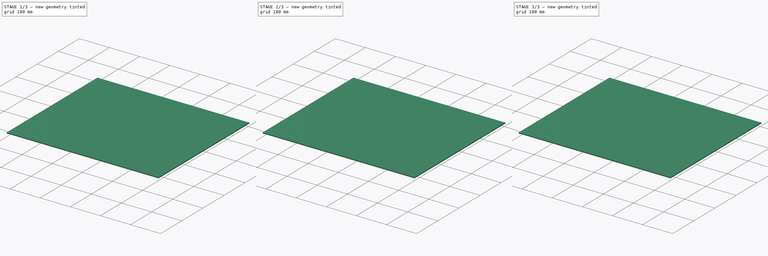
[diagram: build sequence overview — one tinted view per stage of 3, left to right]
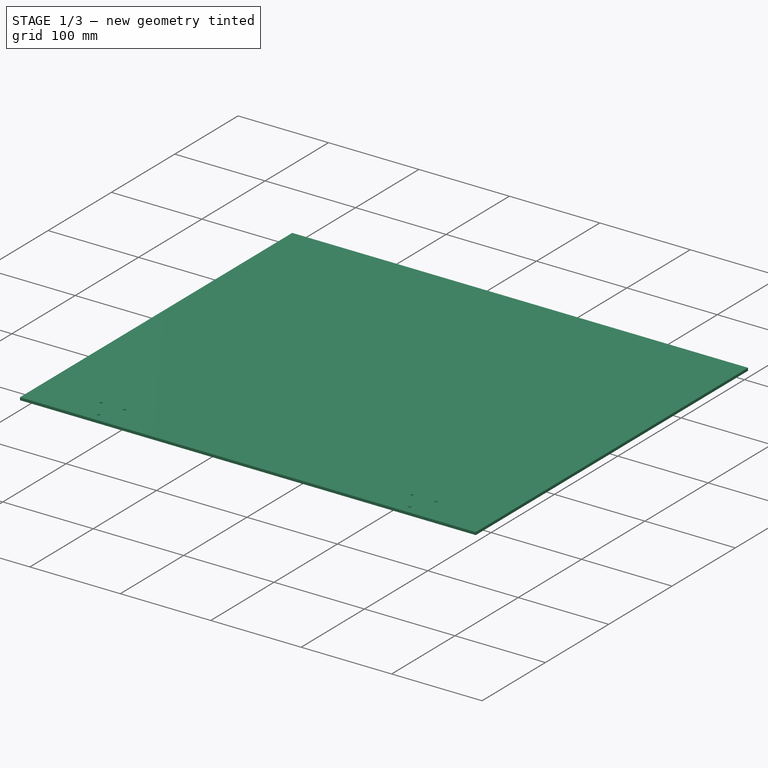
[diagram: stage 1 of 3 — iso view after this stage's code; geometry added in this stage tinted green]
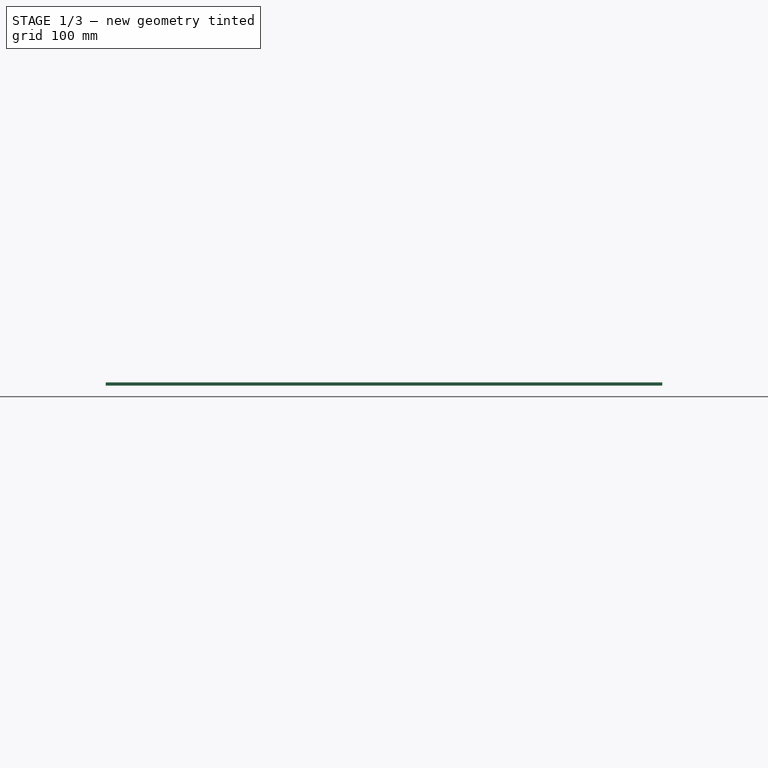
[diagram: stage 1 of 3 — front view after this stage's code; geometry added in this stage tinted green]
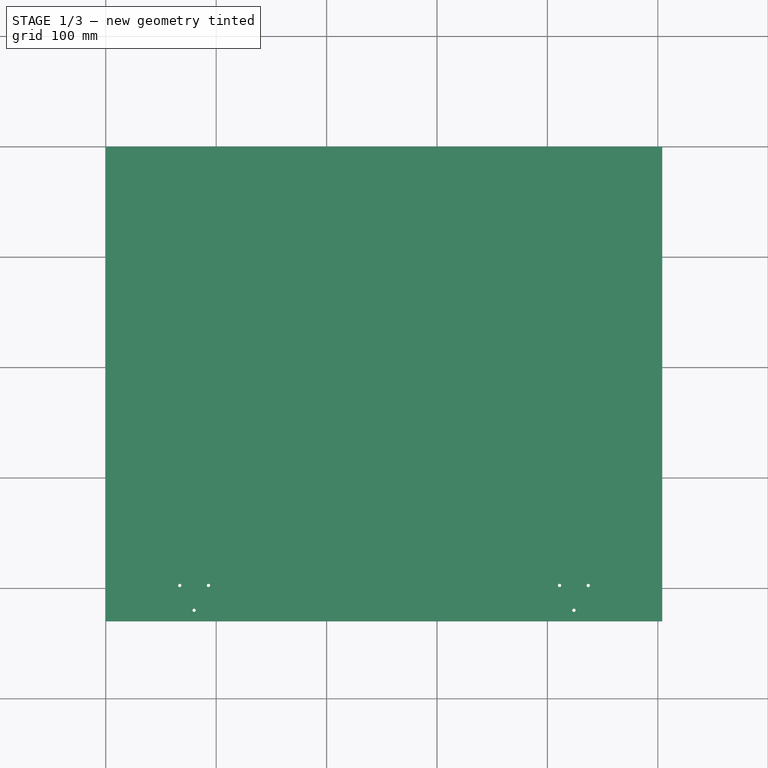
[diagram: stage 1 of 3 — top view after this stage's code; geometry added in this stage tinted green]
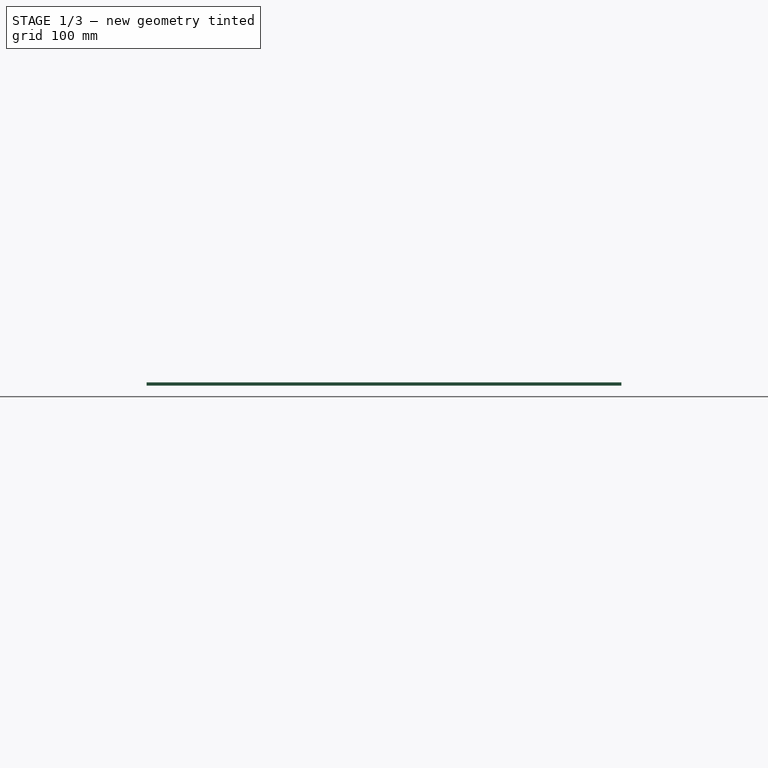
[diagram: stage 1 of 3 — right view after this stage's code; geometry added in this stage tinted green]
FCSTD DOCUMENT  (FreeCAD 0.19R24291 (Git))
Label: panel-drawing-250
License: Other
LicenseURL: GPL3
objects: Sketcher::SketchObject×5, PartDesign::Pad×5, PartDesign::Body×5, Part::Part2DObjectPython×5
note: 25 computed .brp shape members not serialized (recipe doc carries the construction recipe); baked Part::Feature solids carry a one-line shape summary decoded from their .brp

FEATURE [PartDesign::Body] Body002  label="top"
  Group = -> [Sketch002,Pad002]
  Origin = -> Origin002
  Tip = -> Pad002
FEATURE [Sketcher::SketchObject] Sketch003
  FullyConstrained = true
  MapMode = 5
  Support = -> [XY_Plane003]
  sketch-geometry (4):
    g0: LineSegment StartX=0 StartY=0 StartZ=0 EndX=504 EndY=0 EndZ=0
    g1: LineSegment StartX=504 StartY=0 StartZ=0 EndX=504 EndY=-374 EndZ=0
    g2: LineSegment StartX=504 StartY=-374 StartZ=0 EndX=0 EndY=-374 EndZ=0
    g3: LineSegment StartX=0 StartY=-374 StartZ=0 EndX=0 EndY=0 EndZ=0
  constraints (11):
    c: Coincident(g0,g1)
    c: Coincident(g1,g2)
    c: Coincident(g2,g3)
    c: Coincident(g3,g0)
    c: Horizontal(g0)
    c: Horizontal(g2)
    c: Vertical(g1)
    c: Vertical(g3)
    c: Coincident(g0,g-1)
    c: DistanceY(g1,g1) = 374
    c: DistanceX(g2,g2) = 504
FEATURE [Sketcher::SketchObject] Sketch004
  FullyConstrained = true
  MapMode = 5
  Support = -> [XY_Plane004]
  sketch-geometry (16):
    g0: LineSegment StartX=0 StartY=0 StartZ=0 EndX=504 EndY=0 EndZ=0
    g1: LineSegment StartX=504 StartY=0 StartZ=0 EndX=504 EndY=-430 EndZ=0
    g2: LineSegment StartX=504 StartY=-430 StartZ=0 EndX=0 EndY=-430 EndZ=0
    g3: LineSegment StartX=0 StartY=-430 StartZ=0 EndX=0 EndY=0 EndZ=0
    g4: Circle CenterX=80 CenterY=-10 CenterZ=0 NormalX=0 NormalY=0 NormalZ=1 AngleXU=0 Radius=1.5
    g5: Circle CenterX=109 CenterY=-10 CenterZ=0 NormalX=0 NormalY=0 NormalZ=1 AngleXU=0 Radius=1.5
    g6: Circle CenterX=347 CenterY=-10 CenterZ=0 NormalX=0 NormalY=0 NormalZ=1 AngleXU=0 Radius=1.5
    g7: Circle CenterX=374 CenterY=-10 CenterZ=0 NormalX=0 NormalY=0 NormalZ=1 AngleXU=0 Radius=1.5
    g8: Circle CenterX=395 CenterY=-10 CenterZ=0 NormalX=0 NormalY=0 NormalZ=1 AngleXU=0 Radius=1.5
    g9: Circle CenterX=424 CenterY=-10 CenterZ=0 NormalX=0 NormalY=0 NormalZ=1 AngleXU=0 Radius=1.5
    g10: Circle CenterX=67 CenterY=-397.5 CenterZ=0 NormalX=0 NormalY=0 NormalZ=1 AngleXU=0 Radius=1.5
    g11: Circle CenterX=80 CenterY=-420 CenterZ=0 NormalX=0 NormalY=0 NormalZ=1 AngleXU=0 Radius=1.5
    g12: Circle CenterX=93 CenterY=-397.5 CenterZ=0 NormalX=0 NormalY=0 NormalZ=1 AngleXU=0 Radius=1.5
    g13: Circle CenterX=437 CenterY=-397.5 CenterZ=0 NormalX=0 NormalY=0 NormalZ=1 AngleXU=0 Radius=1.5
    g14: Circle CenterX=411 CenterY=-397.5 CenterZ=0 NormalX=0 NormalY=0 NormalZ=1 AngleXU=0 Radius=1.5
    g15: Circle CenterX=424 CenterY=-420 CenterZ=0 NormalX=0 NormalY=0 NormalZ=1 AngleXU=0 Radius=1.5
  constraints (47):
    c: Coincident(g0,g1)
    c: Coincident(g1,g2)
    c: Coincident(g2,g3)
    c: Coincident(g3,g0)
    c: Horizontal(g0)
    c: Horizontal(g2)
    c: Vertical(g1)
    c: Vertical(g3)
    c: Coincident(g0,g-1)
    c: DistanceX(g2,g2) = 504
    c: DistanceY(g1,g1) = 430
    c: Radius(g4) = 1.5
    c: Radius(g5) = 1.5
    c: Radius(g6) = 1.5
    c: Radius(g7) = 1.5
    c: Radius(g8) = 1.5
    c: Radius(g9) = 1.5
    c: Horizontal(g9,g8)
    c: Horizontal(g8,g7)
    c: Horizontal(g7,g6)
    c: Horizontal(g6,g5)
    c: Horizontal(g5,g4)
    c: DistanceY(g4,g0) = 10
    c: DistanceX(g0,g4) = 80
    c: DistanceX(g4,g5) = 29
    c: DistanceX(g9,g0) = 80
    c: DistanceX(g8,g9) = 29
    c: DistanceX(g7,g0) = 130
    c: DistanceX(g6,g7) = 27
    c: Radius(g10) = 1.5
    c: Radius(g11) = 1.5
    c: Radius(g12) = 1.5
    c: Radius(g14) = 1.5
    c: Radius(g15) = 1.5
    c: Radius(g13) = 1.5
    c: DistanceX(g2,g10) = 67
    c: DistanceX(g10,g11) = 13
    c: DistanceX(g11,g12) = 13
    c: DistanceX(g13,g1) = 67
    c: DistanceX(g15,g13) = 13
    c: DistanceX(g14,g15) = 13
    c: DistanceY(g2,g11) = 10
    c: DistanceY(g11,g10) = 22.5
    c: DistanceY(g11,g12) = 22.5
    c: DistanceY(g1,g15) = 10
    c: DistanceY(g15,g14) = 22.5
    c: Horizontal(g13,g14)
FEATURE [PartDesign::Pad] Pad003
  Direction = (1,1,1)
  Length = 3
  Length2 = 100
  Profile = -> Sketch004
  Type = 0
FEATURE [PartDesign::Body] Body004  label="front"
  Group = -> [Sketch004,Pad003]
  Origin = -> Origin004
  Tip = -> Pad003
FEATURE [Part::Part2DObjectPython] Shape2DView  label="rear-top-2d"  # Draft 2D object (typed FeaturePython)
  Base = -> Body
  FuseArch = false
  HiddenLines = false
  InPlace = true
  Projection = (0,0,1)
  ProjectionMode = 0
  SegmentLength = 0.05
  Tessellation = false
  VisibleOnly = false
FEATURE [Part::Part2DObjectPython] Shape2DView001  label="rear-bottom-2d"  # Draft 2D object (typed FeaturePython)
  Base = -> Body001
  FuseArch = false
  HiddenLines = false
  InPlace = true
  Projection = (0,0,1)
  ProjectionMode = 0
  SegmentLength = 0.05
  Tessellation = false
  VisibleOnly = false
FEATURE [Part::Part2DObjectPython] Shape2DView002  label="top-2d"  # Draft 2D object (typed FeaturePython)
  Base = -> Body002
  FuseArch = false
  HiddenLines = false
  InPlace = true
  Projection = (0,0,1)
  ProjectionMode = 0
  SegmentLength = 0.05
  Tessellation = false
  VisibleOnly = false
FEATURE [PartDesign::Pad] Pad004
  Direction = (1,1,1)
  Length = 3
  Length2 = 100
  Profile = -> Sketch003
  Type = 0
FEATURE [PartDesign::Body] Body003  label="side"
  Group = -> [Sketch003,Pad004]
  Origin = -> Origin003
  Tip = -> Pad004
FEATURE [Part::Part2DObjectPython] Shape2DView003  label="side-2d"  # Draft 2D object (typed FeaturePython)
  Base = -> Body003
  FuseArch = false
  HiddenLines = false
  InPlace = true
  Projection = (0,0,1)
  ProjectionMode = 0
  SegmentLength = 0.05
  Tessellation = false
  VisibleOnly = false
FEATURE [Part::Part2DObjectPython] Shape2DView004  label="front-2d"  # Draft 2D object (typed FeaturePython)
  Base = -> Body004
  FuseArch = false
  HiddenLines = false
  InPlace = true
  Projection = (0,0,1)
  ProjectionMode = 0
  SegmentLength = 0.05
  Tessellation = false
  VisibleOnly = false
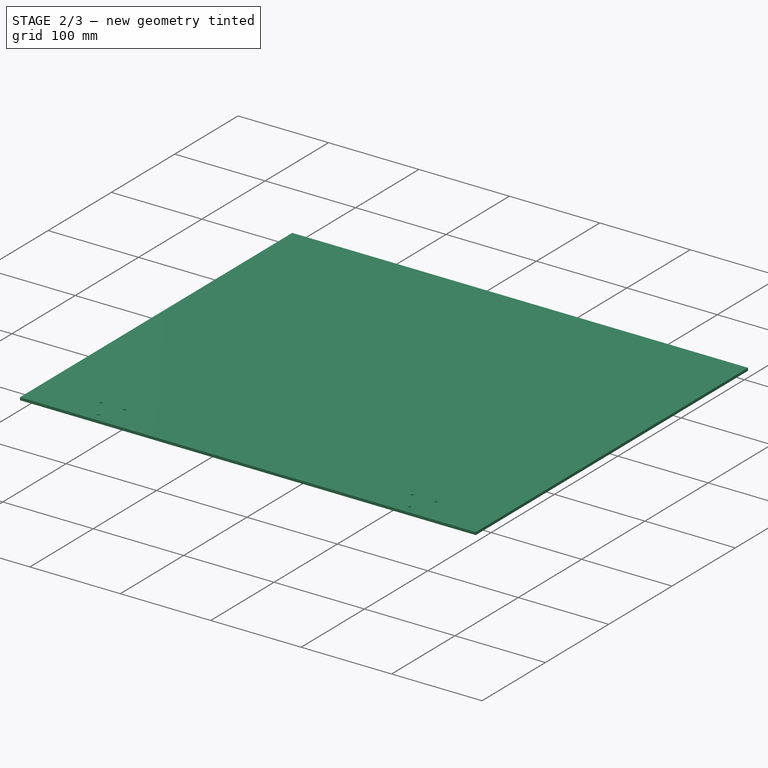
[diagram: stage 2 of 3 — iso view after this stage's code; geometry added in this stage tinted green]
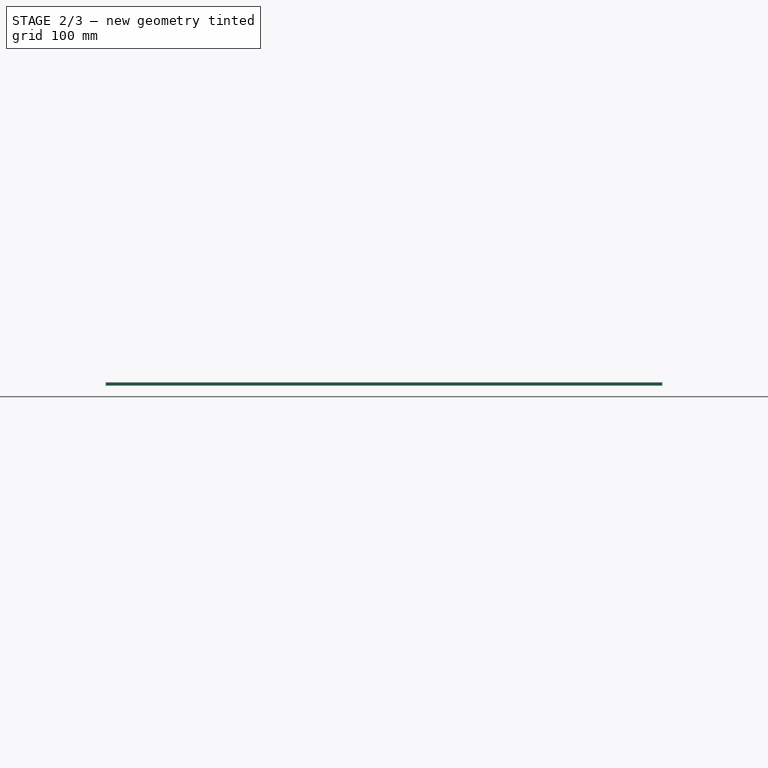
[diagram: stage 2 of 3 — front view after this stage's code; geometry added in this stage tinted green]
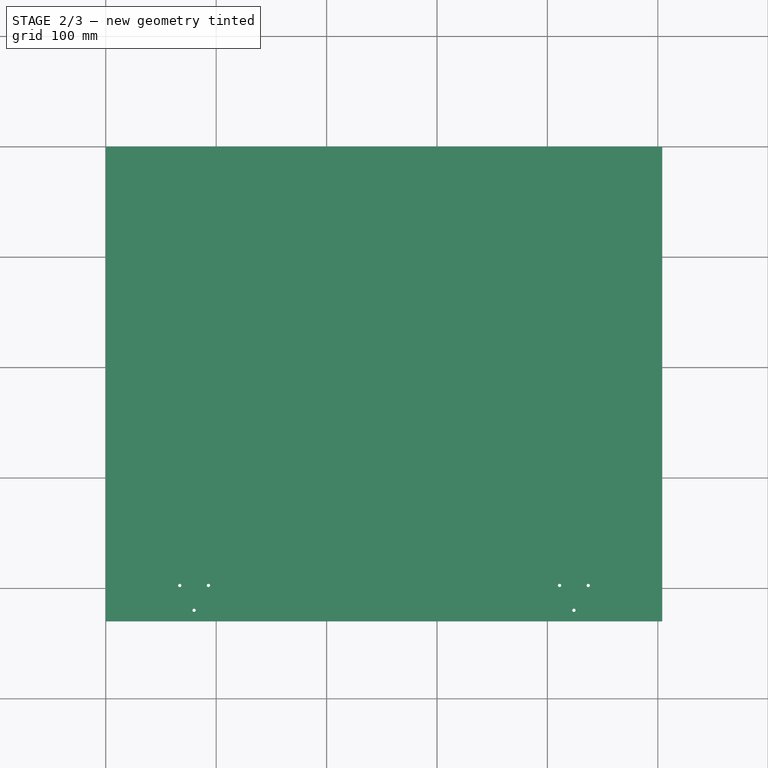
[diagram: stage 2 of 3 — top view after this stage's code; geometry added in this stage tinted green]
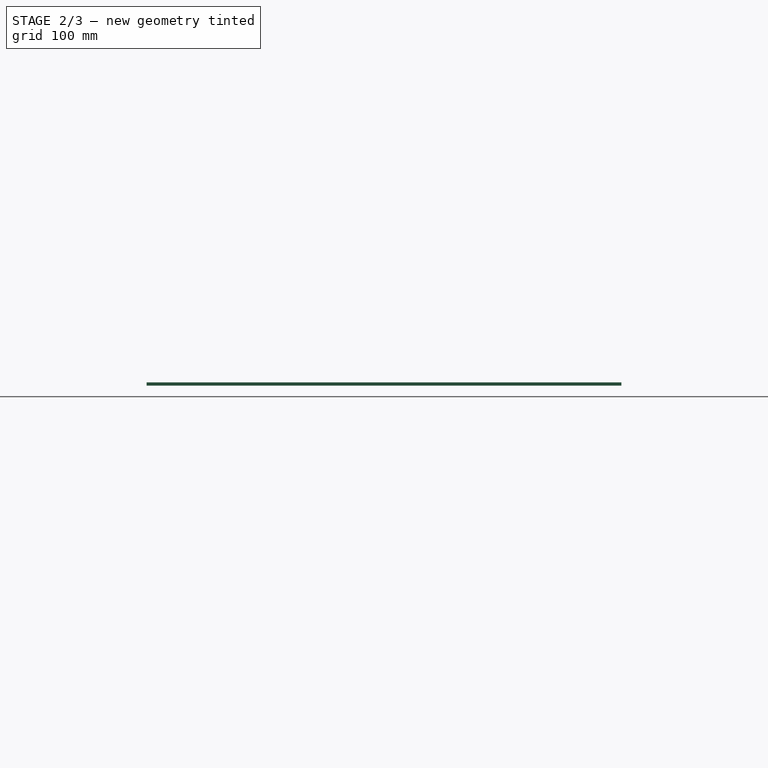
[diagram: stage 2 of 3 — right view after this stage's code; geometry added in this stage tinted green]
FEATURE [PartDesign::Body] Body001  label="rear-bottom"
  Group = -> [Sketch001,Pad001]
  Origin = -> Origin001
  Tip = -> Pad001
FEATURE [Sketcher::SketchObject] Sketch002
  FullyConstrained = true
  MapMode = 5
  Support = -> [XY_Plane002]
  sketch-geometry (4):
    g0: LineSegment StartX=0 StartY=0 StartZ=0 EndX=374 EndY=0 EndZ=0
    g1: LineSegment StartX=374 StartY=0 StartZ=0 EndX=374 EndY=-394 EndZ=0
    g2: LineSegment StartX=374 StartY=-394 StartZ=0 EndX=0 EndY=-394 EndZ=0
    g3: LineSegment StartX=0 StartY=-394 StartZ=0 EndX=0 EndY=0 EndZ=0
  constraints (11):
    c: Coincident(g0,g1)
    c: Coincident(g1,g2)
    c: Coincident(g2,g3)
    c: Coincident(g3,g0)
    c: Horizontal(g0)
    c: Horizontal(g2)
    c: Vertical(g1)
    c: Vertical(g3)
    c: Coincident(g0,g-1)
    c: DistanceX(g0,g0) = 374
    c: DistanceY(g1,g1) = 394
FEATURE [PartDesign::Pad] Pad002
  Direction = (1,1,1)
  Length = 3
  Length2 = 100
  Profile = -> Sketch002
  Type = 0
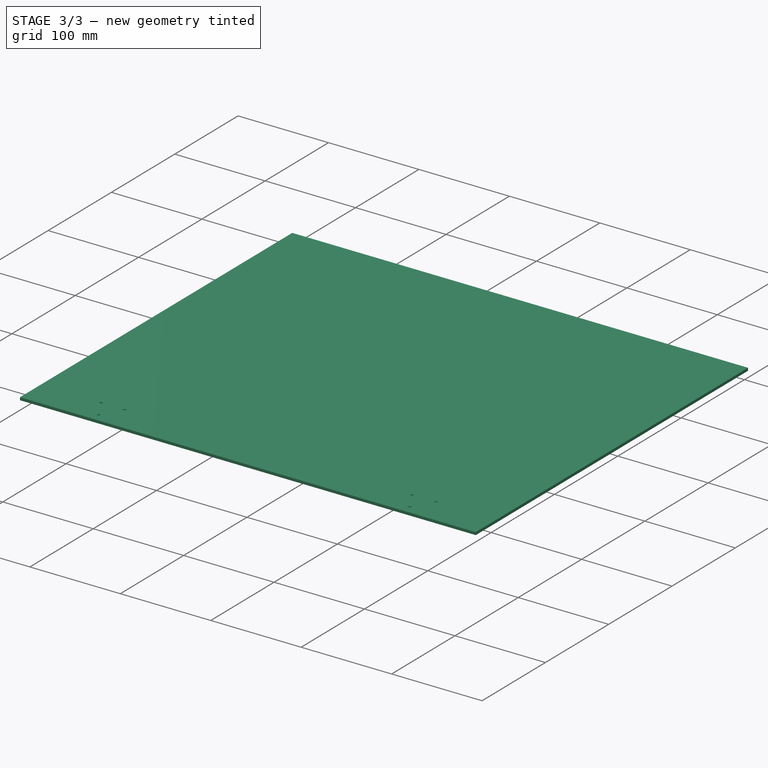
[diagram: stage 3 of 3 — iso view after this stage's code; geometry added in this stage tinted green]
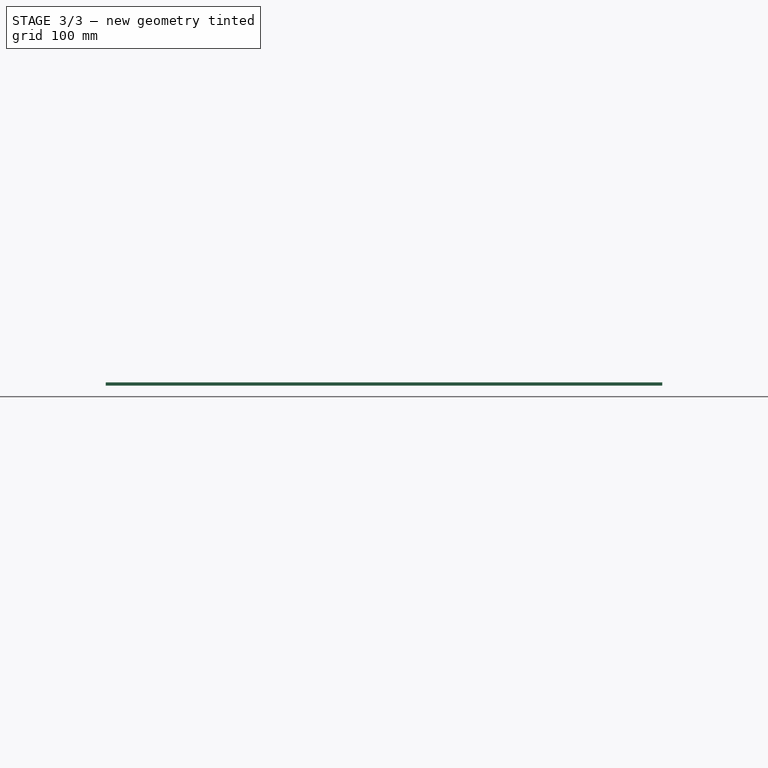
[diagram: stage 3 of 3 — front view after this stage's code; geometry added in this stage tinted green]
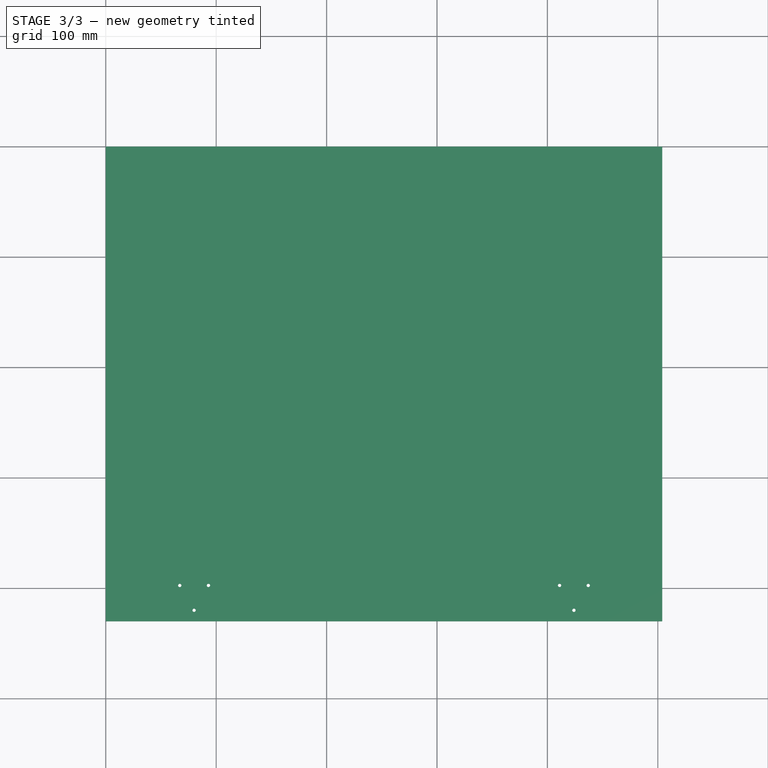
[diagram: stage 3 of 3 — top view after this stage's code; geometry added in this stage tinted green]
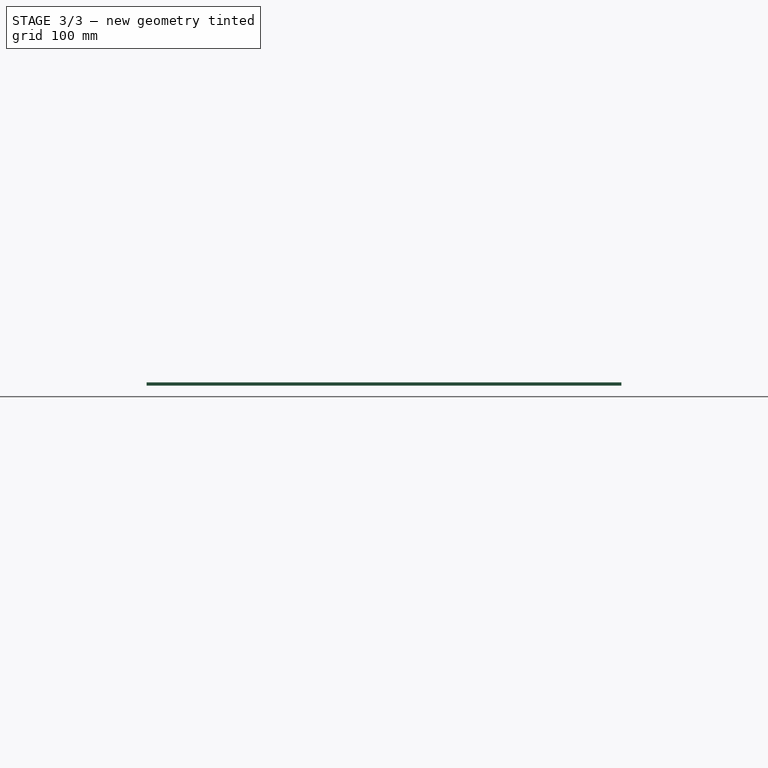
[diagram: stage 3 of 3 — right view after this stage's code; geometry added in this stage tinted green]
FEATURE [Sketcher::SketchObject] Sketch
  FullyConstrained = true
  MapMode = 5
  Support = -> [XY_Plane]
  sketch-geometry (7):
    g0: LineSegment StartX=0 StartY=0 StartZ=0 EndX=394 EndY=0 EndZ=0
    g1: LineSegment StartX=394 StartY=0 StartZ=0 EndX=394 EndY=-179 EndZ=0
    g2: LineSegment StartX=394 StartY=-179 StartZ=0 EndX=0 EndY=-179 EndZ=0
    g3: LineSegment StartX=0 StartY=-179 StartZ=0 EndX=0 EndY=0 EndZ=0
    g4: Circle CenterX=15.5 CenterY=-120 CenterZ=0 NormalX=0 NormalY=0 NormalZ=1 AngleXU=0 Radius=5.75
    g5: Circle CenterX=378.5 CenterY=-120 CenterZ=0 NormalX=0 NormalY=0 NormalZ=1 AngleXU=0 Radius=5.75
    g6: Circle CenterX=46.5 CenterY=-24.5 CenterZ=0 NormalX=0 NormalY=0 NormalZ=1 AngleXU=0 Radius=12
  constraints (20):
    c: Coincident(g0,g1)
    c: Coincident(g1,g2)
    c: Coincident(g2,g3)
    c: Coincident(g3,g0)
    c: Horizontal(g0)
    c: Horizontal(g2)
    c: Vertical(g1)
    c: Vertical(g3)
    c: Coincident(g0,g-1)
    c: DistanceY(g3,g3) = 179
    c: DistanceX(g0,g0) = 394
    c: Radius(g6) = 12
    c: Radius(g4) = 5.75
    c: Radius(g5) = 5.75
    c: DistanceX(g2,g4) = 15.5
    c: DistanceX(g5,g1) = 15.5
    c: DistanceX(g0,g6) = 46.5
    c: DistanceY(g6,g0) = 24.5
    c: DistanceY(g2,g4) = 59
    c: DistanceY(g1,g5) = 59
FEATURE [PartDesign::Pad] Pad
  Direction = (1,1,1)
  Length = 3
  Length2 = 100
  Profile = -> Sketch
  Type = 0
FEATURE [PartDesign::Body] Body  label="rear-top"
  Group = -> [Sketch,Pad]
  Origin = -> Origin
  Tip = -> Pad
FEATURE [Sketcher::SketchObject] Sketch001
  FullyConstrained = true
  MapMode = 5
  Support = -> [XY_Plane001]
  sketch-geometry (12):
    g0: LineSegment StartX=0 StartY=0 StartZ=0 EndX=379 EndY=0 EndZ=0
    g1: LineSegment StartX=379 StartY=0 StartZ=0 EndX=379 EndY=-294 EndZ=0
    g2: LineSegment StartX=379 StartY=-294 StartZ=0 EndX=346.5 EndY=-294 EndZ=0
    g3: LineSegment StartX=0 StartY=-294 StartZ=0 EndX=0 EndY=0 EndZ=0
    g4: LineSegment StartX=32.5 StartY=-294 StartZ=0 EndX=32.5 EndY=-281 EndZ=0
    g5: LineSegment StartX=32.5 StartY=-281 StartZ=0 EndX=54.5 EndY=-281 EndZ=0
    g6: LineSegment StartX=54.5 StartY=-281 StartZ=0 EndX=54.5 EndY=-294 EndZ=0
    g7: LineSegment StartX=324.5 StartY=-294 StartZ=0 EndX=324.5 EndY=-281 EndZ=0
    g8: LineSegment StartX=324.5 StartY=-281 StartZ=0 EndX=346.5 EndY=-281 EndZ=0
    g9: LineSegment StartX=346.5 StartY=-281 StartZ=0 EndX=346.5 EndY=-294 EndZ=0
    g10: LineSegment StartX=32.5 StartY=-294 StartZ=0 EndX=0 EndY=-294 EndZ=0
    g11: LineSegment StartX=324.5 StartY=-294 StartZ=0 EndX=54.5 EndY=-294 EndZ=0
  constraints (33):
    c: Coincident(g0,g1)
    c: Coincident(g1,g2)
    c: Coincident(g10,g3)
    c: Coincident(g3,g0)
    c: Horizontal(g0)
    c: Horizontal(g2)
    c: Vertical(g1)
    c: Vertical(g3)
    c: Coincident(g0,g-1)
    c: DistanceX(g0,g0) = 379
    c: DistanceY(g3,g3) = 294
    c: Vertical(g4)
    c: Coincident(g4,g5)
    c: Horizontal(g5)
    c: Coincident(g5,g6)
    c: Vertical(g6)
    c: Vertical(g7)
    c: Coincident(g7,g8)
    c: Horizontal(g8)
    c: Coincident(g8,g9)
    c: Vertical(g9)
    c: DistanceX(g5,g5) = 22
    c: DistanceX(g8,g8) = 22
    c: Coincident(g11,g6)
    c: Coincident(g10,g4)
    c: Tangent(g2,g10)
    c: Coincident(g2,g9)
    c: Coincident(g11,g7)
    c: Tangent(g2,g11)
    c: DistanceX(g10,g10) = 32.5
    c: DistanceX(g2,g2) = 32.5
    c: DistanceY(g6,g6) = 13
    c: DistanceY(g7,g7) = 13
FEATURE [PartDesign::Pad] Pad001
  Direction = (1,1,1)
  Length = 3
  Length2 = 100
  Profile = -> Sketch001
  Type = 0
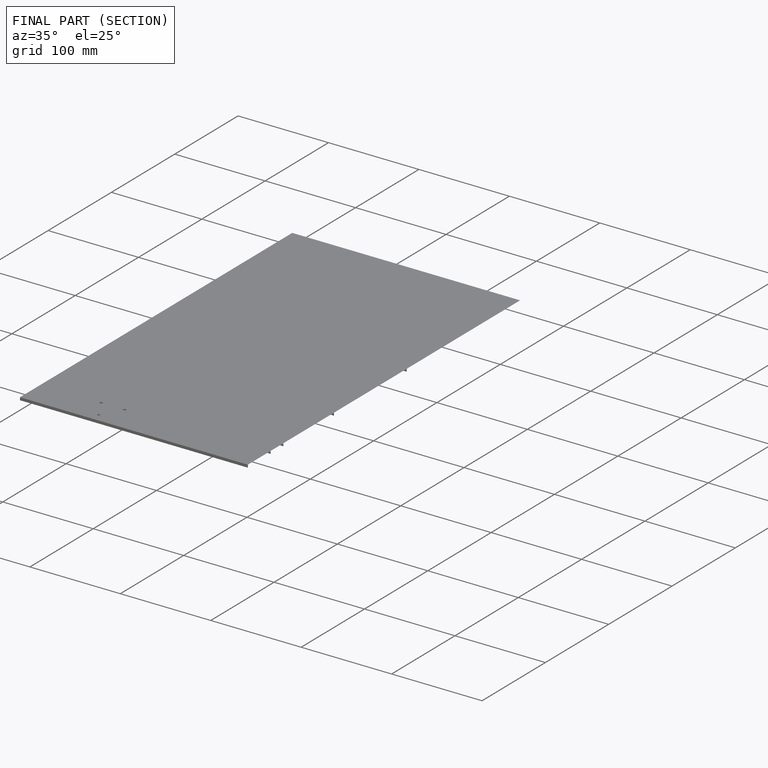
[diagram: finished part — half-section view (interior)]
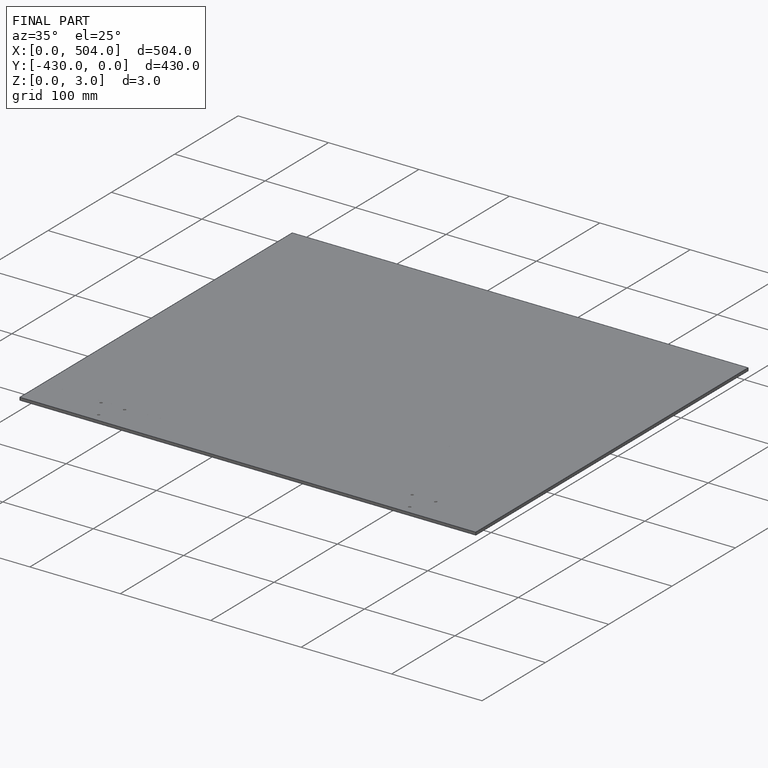
[diagram: finished part — iso view with bounding-box wireframe]
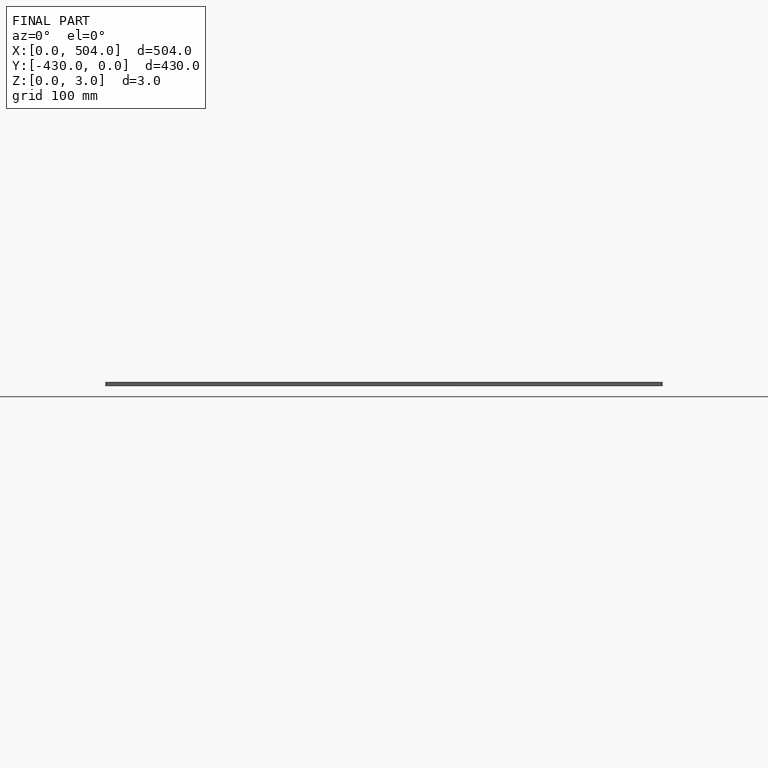
[diagram: finished part — front view with bounding-box wireframe]
